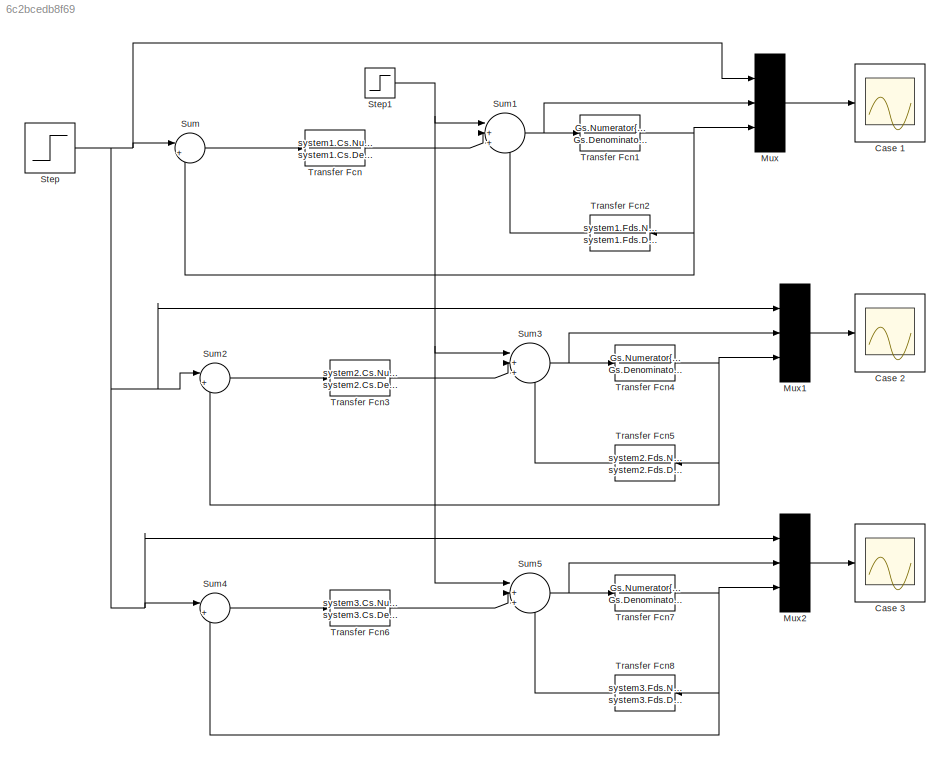
MODEL slx_6c2bcedb8f69
KIND model
CONFIG AbsTol = auto
CONFIG EnableMultiTasking = off
CONFIG FixedStep = auto
CONFIG MaxStep = auto
CONFIG MinStep = auto
CONFIG RelTol = 1e-3
CONFIG SampleTimeConstraint = Unconstrained
CONFIG Solver = VariableStepAuto
CONFIG SolverName = VariableStepAuto
CONFIG StartTime = 0.0
CONFIG StopTime = time
BLOCK [Scope] Case 1
  Floating = off
  NumInputPorts = 1
  Ports = [1]
  ScopeSpecificationString = Simulink.scopes.TimeScopeBlockCfg('CurrentConfiguration', extmgr.ConfigurationSet(extmgr.Configuration('Core','General UI',true),extmgr.Configuration('Core','Source UI',true),extmgr.Configuration('Sources','WiredSimulink',true,'DataLogging',true,'DataLoggingVariableName','CaseAData','DataLoggingSaveFormat','StructureWithTime'),extmgr.Configuration('Visuals','Time Domain',true,'SerializedDisplays',...<+1503ch>
BLOCK [Scope] Case 2
  Floating = off
  NumInputPorts = 1
  Ports = [1]
  ScopeSpecificationString = Simulink.scopes.TimeScopeBlockCfg('CurrentConfiguration', extmgr.ConfigurationSet(extmgr.Configuration('Core','General UI',true),extmgr.Configuration('Core','Source UI',true),extmgr.Configuration('Sources','WiredSimulink',true,'DataLoggingVariableName','CaseBData','DataLogging',true,'DataLoggingSaveFormat','StructureWithTime'),extmgr.Configuration('Visuals','Time Domain',true,'SerializedDisplays',...<+1503ch>
BLOCK [Scope] Case 3
  Floating = off
  NumInputPorts = 1
  Ports = [1]
  ScopeSpecificationString = Simulink.scopes.TimeScopeBlockCfg('CurrentConfiguration', extmgr.ConfigurationSet(extmgr.Configuration('Core','General UI',true),extmgr.Configuration('Core','Source UI',true),extmgr.Configuration('Sources','WiredSimulink',true,'DataLoggingVariableName','CaseCData','DataLogging',true,'DataLoggingSaveFormat','StructureWithTime'),extmgr.Configuration('Visuals','Time Domain',true,'SerializedDisplays',...<+1499ch>
BLOCK [Mux] Mux
  DisplayOption = bar
  Inputs = 3
  Ports = [3, 1]
BLOCK [Mux] Mux1
  DisplayOption = bar
  Inputs = 3
  Ports = [3, 1]
BLOCK [Mux] Mux2
  DisplayOption = bar
  Inputs = 3
  Ports = [3, 1]
BLOCK [Step] Step
  After = 3
  SampleTime = 0.1
  Time = 0
BLOCK [Step] Step1
  SampleTime = 0
  Time = half_time
BLOCK [Sum] Sum
  IconShape = round
  InputSameDT = off
  Inputs = |+-
  OutDataTypeStr = Inherit: Inherit via internal rule
  Ports = [2, 1]
  SaturateOnIntegerOverflow = off
BLOCK [Sum] Sum1
  IconShape = round
  InputSameDT = off
  Inputs = |++-
  OutDataTypeStr = Inherit: Inherit via internal rule
  Ports = [3, 1]
  SaturateOnIntegerOverflow = off
BLOCK [Sum] Sum2
  IconShape = round
  InputSameDT = off
  Inputs = |+-
  OutDataTypeStr = Inherit: Inherit via internal rule
  Ports = [2, 1]
  SaturateOnIntegerOverflow = off
BLOCK [Sum] Sum3
  IconShape = round
  InputSameDT = off
  Inputs = |++-
  OutDataTypeStr = Inherit: Inherit via internal rule
  Ports = [3, 1]
  SaturateOnIntegerOverflow = off
BLOCK [Sum] Sum4
  IconShape = round
  InputSameDT = off
  Inputs = |+-
  OutDataTypeStr = Inherit: Inherit via internal rule
  Ports = [2, 1]
  SaturateOnIntegerOverflow = off
BLOCK [Sum] Sum5
  IconShape = round
  InputSameDT = off
  Inputs = |++-
  OutDataTypeStr = Inherit: Inherit via internal rule
  Ports = [3, 1]
  SaturateOnIntegerOverflow = off
BLOCK [TransferFcn] Transfer Fcn
  Denominator = system1.Cs.Denominator{1,1}
  Numerator = system1.Cs.Numerator{1,1}
BLOCK [TransferFcn] Transfer Fcn1
  Denominator = Gs.Denominator{1,1}
  Numerator = Gs.Numerator{1,1}
BLOCK [TransferFcn] Transfer Fcn2
  Denominator = system1.Fds.Denominator{1,1}
  Numerator = system1.Fds.Numerator{1,1}
BLOCK [TransferFcn] Transfer Fcn3
  Denominator = system2.Cs.Denominator{1,1}
  Numerator = system2.Cs.Numerator{1,1}
BLOCK [TransferFcn] Transfer Fcn4
  Denominator = Gs.Denominator{1,1}
  Numerator = Gs.Numerator{1,1}
BLOCK [TransferFcn] Transfer Fcn5
  Denominator = system2.Fds.Denominator{1,1}
  Numerator = system2.Fds.Numerator{1,1}
BLOCK [TransferFcn] Transfer Fcn6
  Denominator = system3.Cs.Denominator{1,1}
  Numerator = system3.Cs.Numerator{1,1}
BLOCK [TransferFcn] Transfer Fcn7
  Denominator = Gs.Denominator{1,1}
  Numerator = Gs.Numerator{1,1}
BLOCK [TransferFcn] Transfer Fcn8
  Denominator = system3.Fds.Denominator{1,1}
  Numerator = system3.Fds.Numerator{1,1}
LINE Mux1:1 -> Case 2:1
LINE Mux2:1 -> Case 3:1
LINE Mux:1 -> Case 1:1
NET Step1:1 -> Sum1:1, Sum3:1, Sum5:1
NET Step:1 -> Mux1:1, Mux2:1, Mux:1, Sum2:1, Sum4:1, Sum:1
NET Sum1:1 -> Mux:2, Transfer Fcn1:1
LINE Sum2:1 -> Transfer Fcn3:1
NET Sum3:1 -> Mux1:2, Transfer Fcn4:1
LINE Sum4:1 -> Transfer Fcn6:1
NET Sum5:1 -> Mux2:2, Transfer Fcn7:1
LINE Sum:1 -> Transfer Fcn:1
NET Transfer Fcn1:1 -> Mux:3, Sum:2, Transfer Fcn2:1
LINE Transfer Fcn2:1 -> Sum1:3
LINE Transfer Fcn3:1 -> Sum3:2
NET Transfer Fcn4:1 -> Mux1:3, Sum2:2, Transfer Fcn5:1
LINE Transfer Fcn5:1 -> Sum3:3
LINE Transfer Fcn6:1 -> Sum5:2
NET Transfer Fcn7:1 -> Mux2:3, Sum4:2, Transfer Fcn8:1
LINE Transfer Fcn8:1 -> Sum5:3
LINE Transfer Fcn:1 -> Sum1:2
note: NET lines group one-source signal fan-out (src -> all destinations, sorted); 1:1 wires keep LINE
